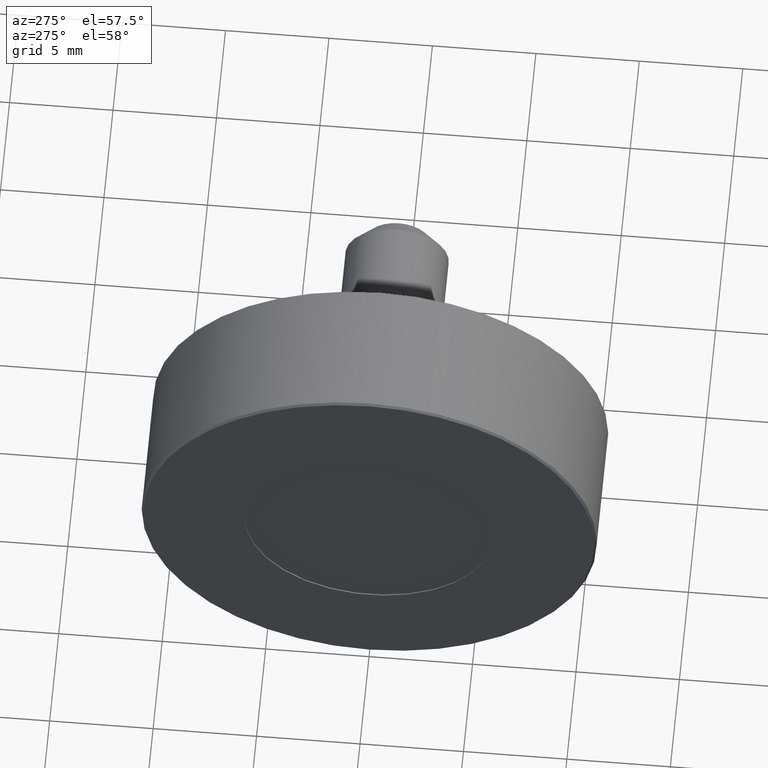
[diagram: clean part render]
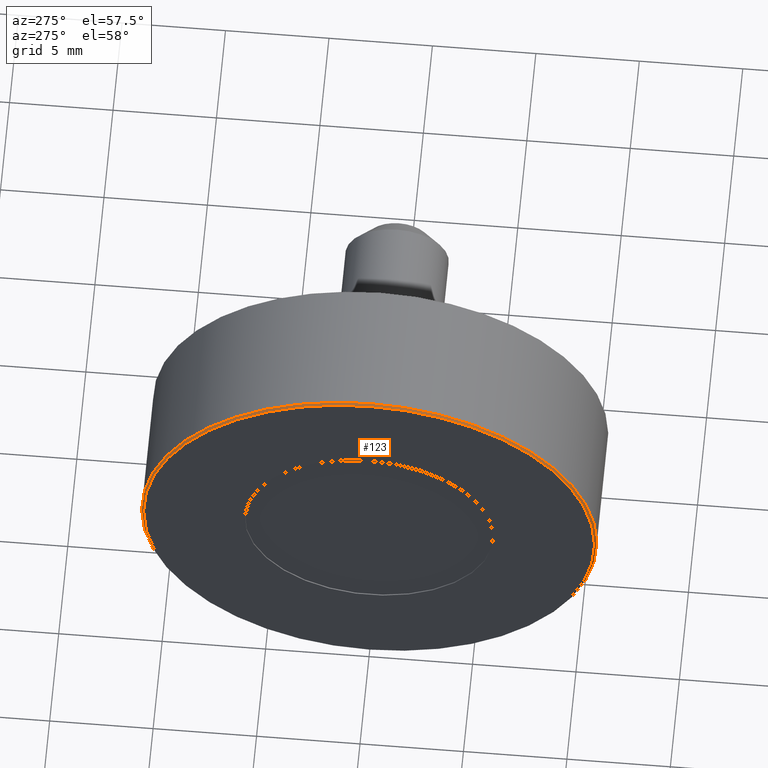
[diagram: same view with one face highlighted and labeled with its STEP entity id]
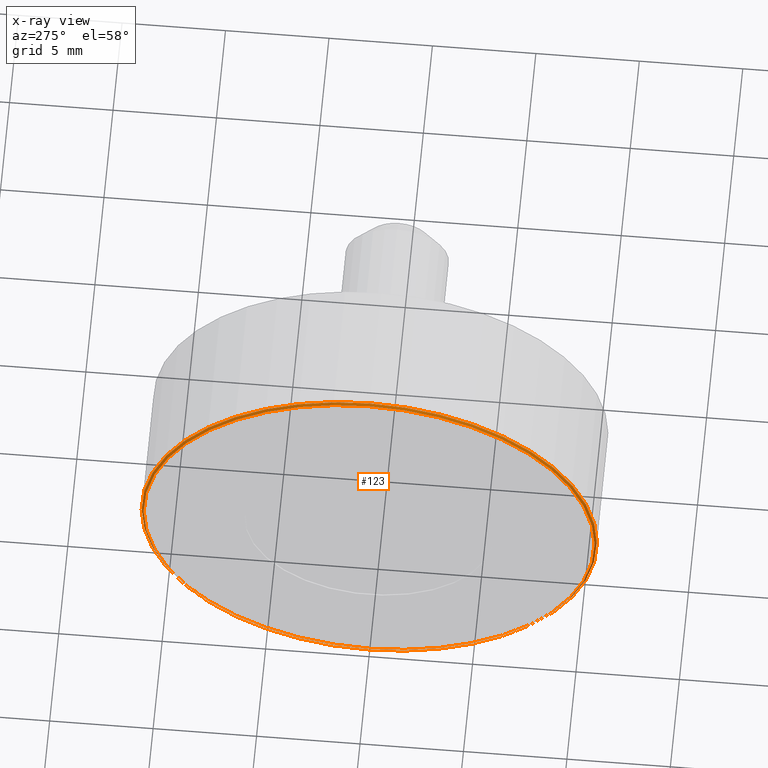
[diagram: x-ray of the same camera — body ghosted, the highlighted face saturated]
A machine part, auxiliary view. The second image highlights one B-rep face of the part: STEP entity #123.
The next image is the same camera in x-ray: the body ghosted, the highlighted face saturated — about 0% of this face is hidden behind the body in this view.
In plain terms, the highlighted conical surface has half-angle 45 deg.
Its self-contained STEP definition (entity closure, byte-faithful):
#28=FACE_BOUND('',#56,.T.);
#38=FACE_OUTER_BOUND('',#55,.T.);
#55=EDGE_LOOP('',(#105));
#56=EDGE_LOOP('',(#106));
#69=CIRCLE('',#143,11.);
#70=CIRCLE('',#145,10.9);
#79=VERTEX_POINT('',#216);
#80=VERTEX_POINT('',#219);
#89=EDGE_CURVE('',#79,#79,#69,.T.);
#90=EDGE_CURVE('',#80,#80,#70,.T.);
#105=ORIENTED_EDGE('',*,*,#89,.T.);
#106=ORIENTED_EDGE('',*,*,#90,.T.);
#114=CONICAL_SURFACE('',#144,10.95,45.);
#123=ADVANCED_FACE('',(#38,#28),#114,.T.);
#143=AXIS2_PLACEMENT_3D('',#217,#180,#181);
#144=AXIS2_PLACEMENT_3D('',#218,#182,#183);
#145=AXIS2_PLACEMENT_3D('',#220,#184,#185);
#180=DIRECTION('center_axis',(-1.,0.,0.));
#181=DIRECTION('ref_axis',(0.,-1.,0.));
#182=DIRECTION('center_axis',(1.,0.,0.));
#183=DIRECTION('ref_axis',(0.,-1.,0.));
#184=DIRECTION('center_axis',(1.,0.,0.));
#185=DIRECTION('ref_axis',(0.,-1.,0.));
#216=CARTESIAN_POINT('',(0.1,11.,-1.34711147906209E-15));
#217=CARTESIAN_POINT('Origin',(0.1,0.,0.));
#218=CARTESIAN_POINT('Origin',(0.05,0.,0.));
#219=CARTESIAN_POINT('',(0.,10.9,1.33486501107062E-15));
#220=CARTESIAN_POINT('Origin',(0.,0.,0.));